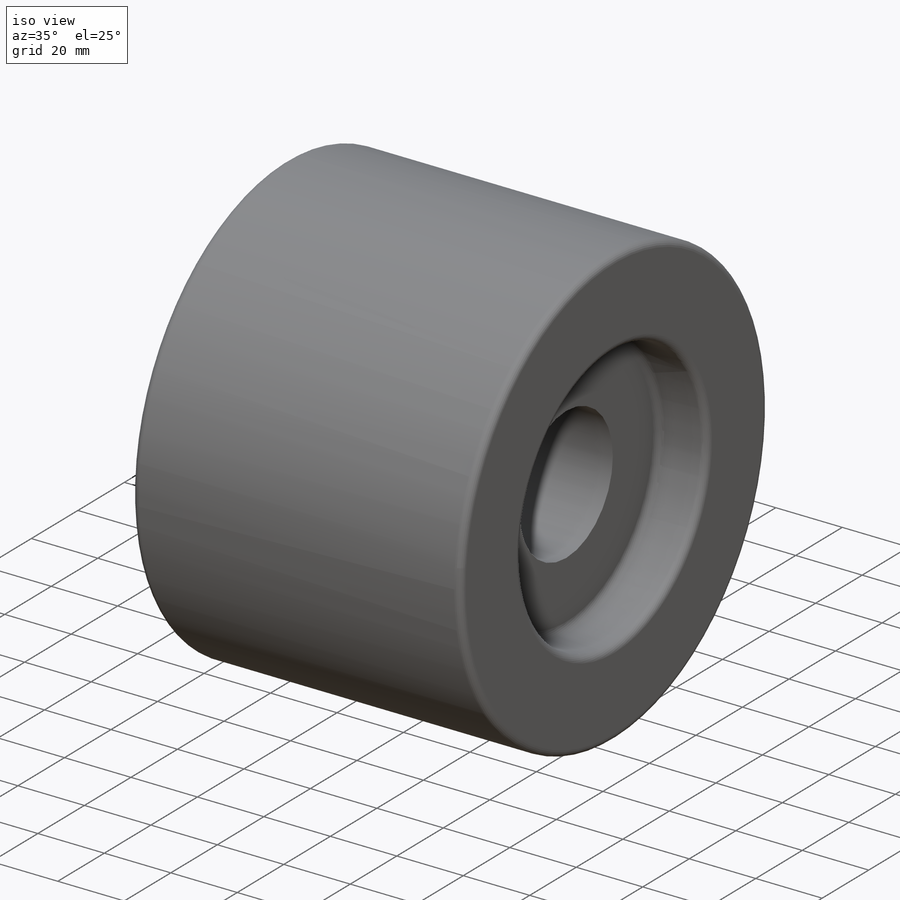
[diagram: iso view]
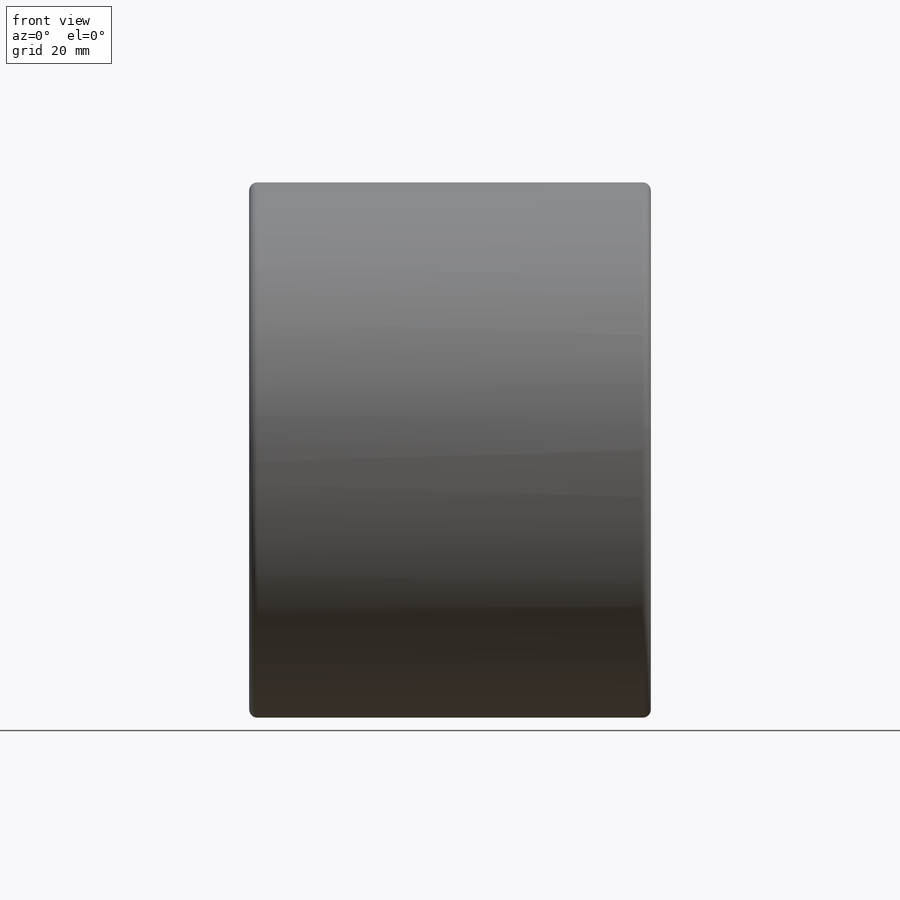
[diagram: front view]
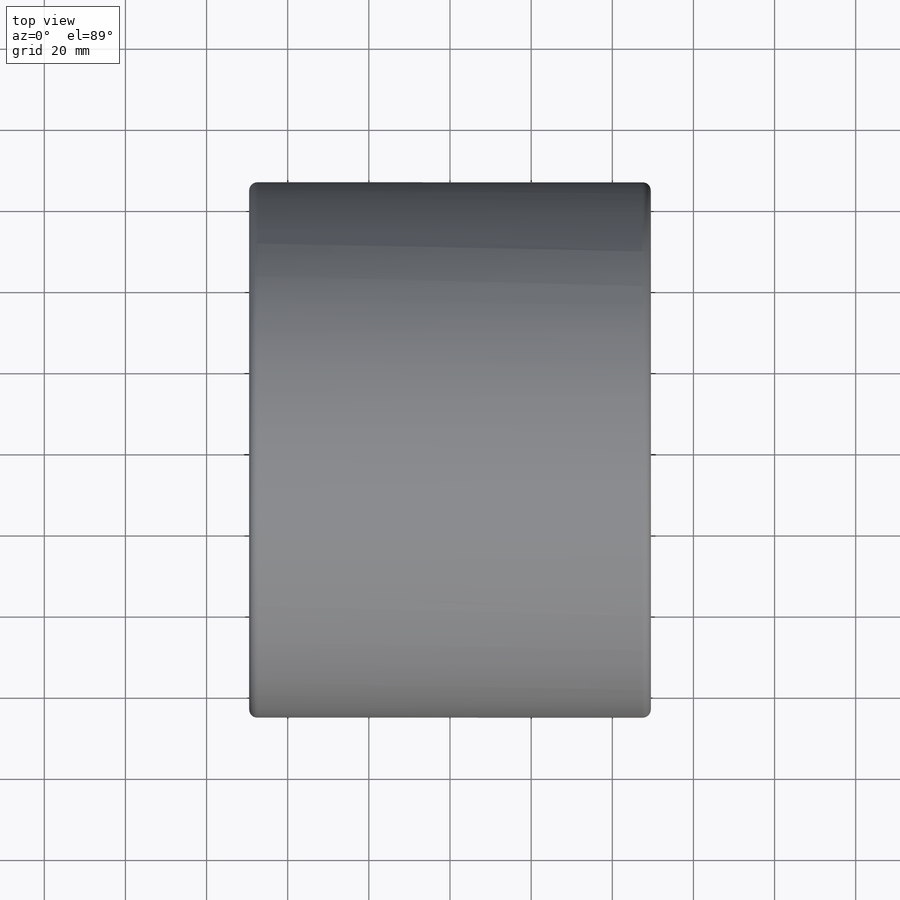
[diagram: top view]
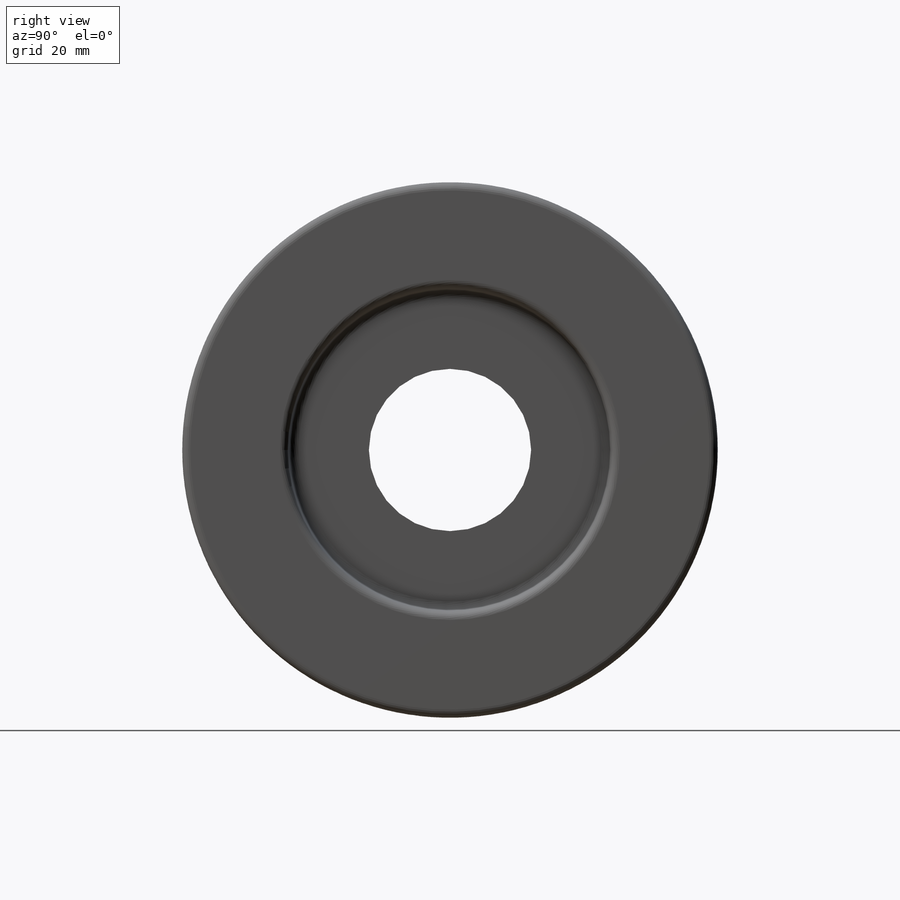
[diagram: right view]
SOLIDWORKS PART (.sldprt)
format: sldprt  version: not decoded by parser v0  size: 296,448 bytes
history: native  units: mm
features: material x8, cut_extrude x5, plane x1, sketch x1, revolve x1, mirror x1, fillet x1, sweep x1, pattern_linear x1 (+17 scaffold rows collapsed)
feature tree (37):
  scaffold x17  (default folders/planes/origin — collapsed)
  material  "材质 <未指定>"
  material  "草图2"
  material  "草图3"
  material  "草图4"
  material  "草图5"
  material  "草图6"
  material  "草图7"
  material  "草图8"
  plane  "前视基准面"
  sketch  "草图1"  dims[D1=132.0mm D2=99.0mm]
  revolve  "旋转2"  Angle=360deg
  cut_extrude  "切除-拉伸1"  Depth=14.5mm
  mirror  "镜向1"
  fillet  "圆角1"  Radius=2mm
  cut_extrude  "切除-拉伸2"  Depth=100mm
  cut_extrude  "切除-拉伸3"  Depth=100mm
  cut_extrude  "切除-拉伸4"  Depth=100mm
  cut_extrude  "切除-拉伸5"  Depth=100mm
  sweep  "切除-扫描2"
  pattern_linear  "阵列(线性)2"  Count1=5 Count2=1 Spacing1=19mm Spacing2=50mm
decode coverage: 9 of 11 modeling features carry decoded parameters
note: suppression state not decoded; provenance and decode notes live in map.json
